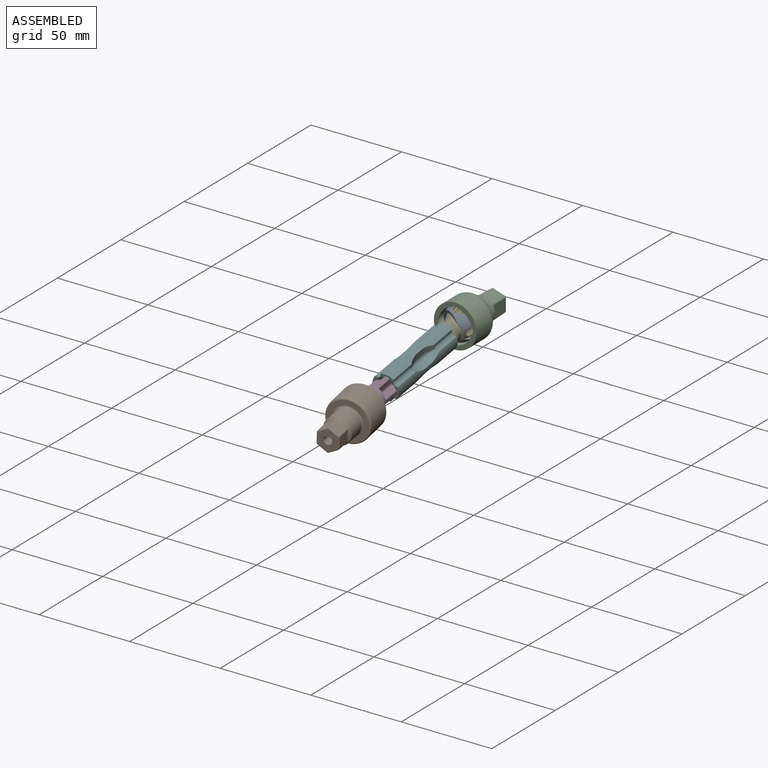
[diagram: assembled view]
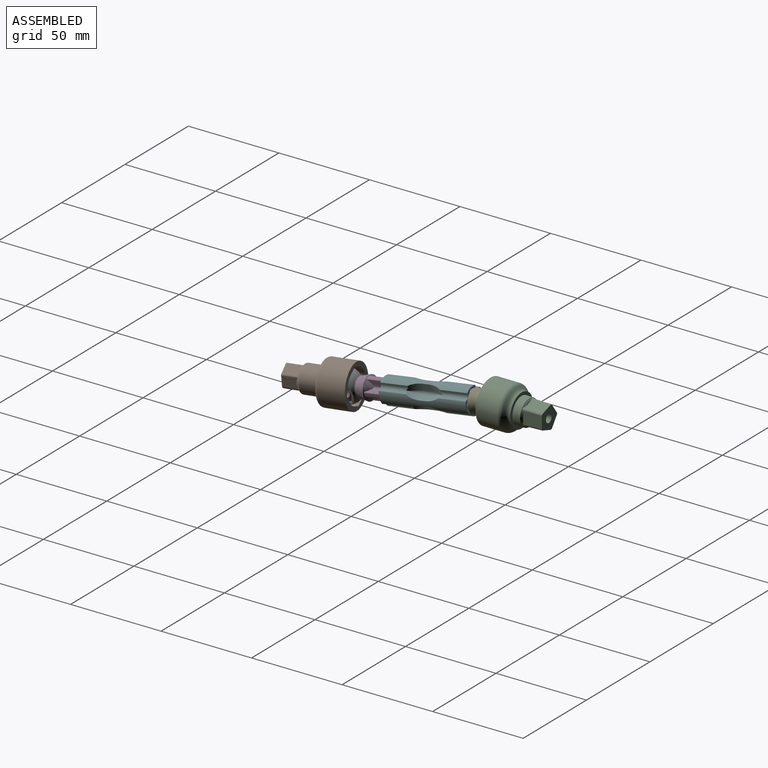
[diagram: assembled view, second angle]
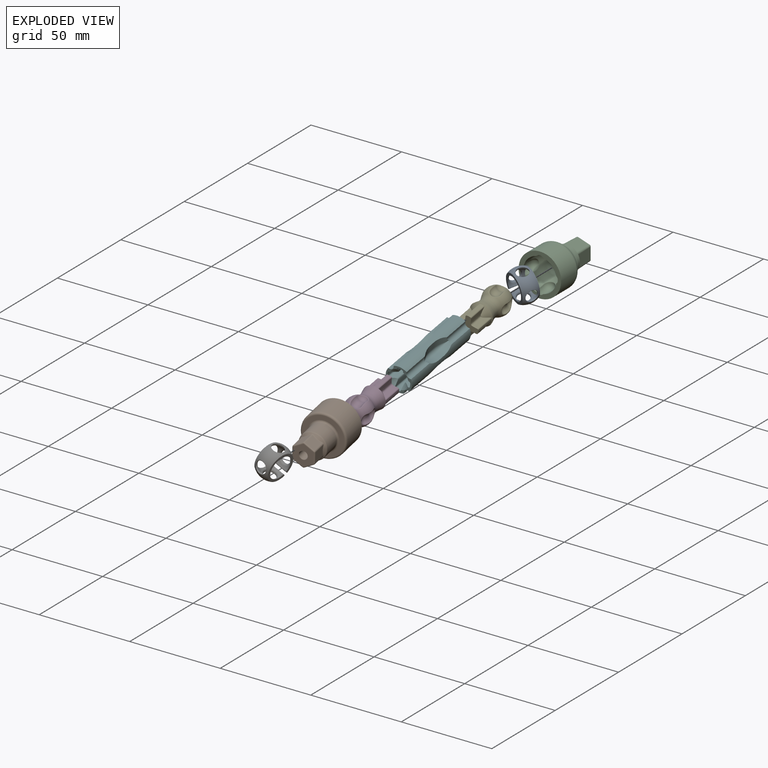
[diagram: exploded view]
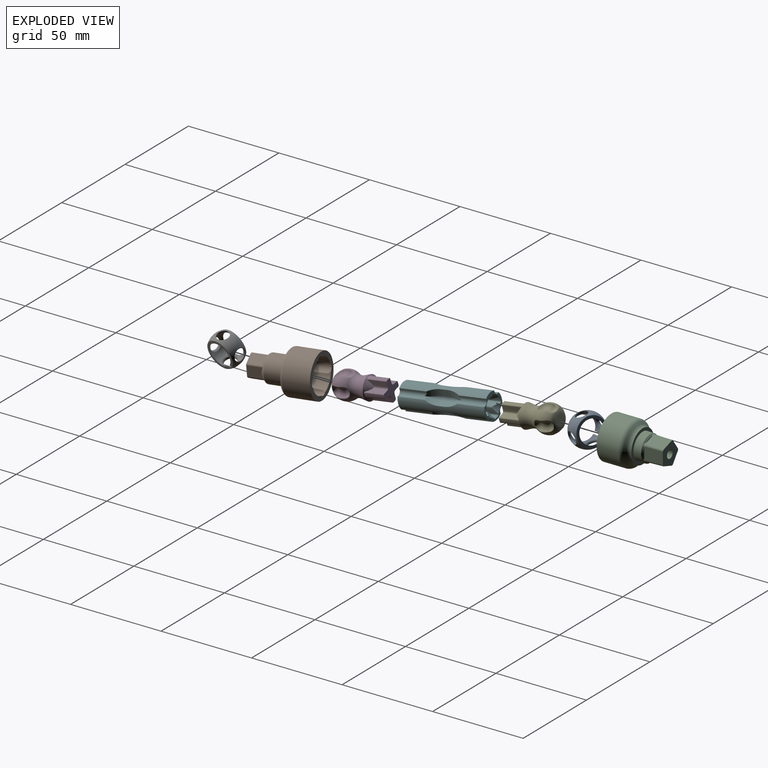
[diagram: exploded view, second angle]
FCSTD DOCUMENT  (FreeCAD 2022.1021R26244 +5249 (Git))
Label: DOGBONE _1_
License: All rights reserved
LicenseURL: http://en.wikipedia.org/wiki/All_rights_reserved
objects: App::FeaturePython×20, Part::FeaturePython×18, App::Link×7, App::Part×1
note: 17 computed .brp shape members not serialized (recipe doc carries the construction recipe); baked Part::Feature solids carry a one-line shape summary decoded from their .brp
EXTERNAL_REF file=DOGBONE _1__parts/C03.fcstd obj=Solid
EXTERNAL_REF file=DOGBONE _1__parts/C01.fcstd obj=Solid
EXTERNAL_REF file=DOGBONE _1__parts/C02.fcstd obj=Solid
EXTERNAL_REF file=DOGBONE _1__parts/C04.fcstd obj=Solid
EXTERNAL_REF file=DOGBONE _1__parts/C05-T.fcstd obj=Solid

FEATURE [App::Link] Link  label="C03"
  AutoLinkLabel = true
  AutoPlacement = true
  LinkPlacement = pos=(-90.0198,-31.6115,-13.564) rot=(0.08311,0.784722,-0.614251;3.61941rad)
  LinkedObject = -> <external DOGBONE _1__parts/C03.fcstd>#Solid
  Placement = pos=(-90.0198,-31.6115,-13.564) rot=(0.08311,0.784722,-0.614251;3.61941rad)
  SyncGroupVisibility = false
  TreeRank = 62
  _LinkVersion = 1
FEATURE [App::Link] Link001  label="C01"
  AutoLinkLabel = true
  AutoPlacement = true
  LinkPlacement = pos=(-89.0627,-112.031,-25.7343) rot=(0.535007,0.65266,-0.536473;2.08169rad)
  LinkedObject = -> <external DOGBONE _1__parts/C01.fcstd>#Solid
  Placement = pos=(-89.0627,-112.031,-25.7343) rot=(0.535007,0.65266,-0.536473;2.08169rad)
  SyncGroupVisibility = false
  TreeRank = 63
  _LinkVersion = 1
FEATURE [App::Link] Link002  label="C02"
  AutoLinkLabel = true
  AutoPlacement = true
  LinkPlacement = pos=(-90.0198,-33.6115,-13.564) rot=(-0.57735,-0.57735,-0.57735;2.0944rad)
  LinkedObject = -> <external DOGBONE _1__parts/C02.fcstd>#Solid
  Placement = pos=(-90.0198,-33.6115,-13.564) rot=(-0.57735,-0.57735,-0.57735;2.0944rad)
  SyncGroupVisibility = false
  TreeRank = 64
  _LinkVersion = 1
FEATURE [App::Link] Link003  label="C04"
  AutoLinkLabel = true
  AutoPlacement = true
  LinkPlacement = pos=(-89.3895,-73.46,-19.8067) rot=(0.174827,0.03262,0.984059;1.61771rad)
  LinkedObject = -> <external DOGBONE _1__parts/C04.fcstd>#Solid
  Placement = pos=(-89.3895,-73.46,-19.8067) rot=(0.174827,0.03262,0.984059;1.61771rad)
  SyncGroupVisibility = false
  TreeRank = 65
  _LinkVersion = 1
FEATURE [App::Link] Link004  label="C005"
  AutoLinkLabel = true
  AutoPlacement = true
  LinkPlacement = pos=(-89.4091,-72.1583,-19.6125) rot=(0.71216,-0.69051,-0.126585;3.09426rad)
  LinkedObject = -> <external DOGBONE _1__parts/C04.fcstd>#Solid
  Placement = pos=(-89.4091,-72.1583,-19.6125) rot=(0.71216,-0.69051,-0.126585;3.09426rad)
  SyncGroupVisibility = false
  TreeRank = 66
  _LinkVersion = 1
FEATURE [App::Link] Link005  label="C05-T"
  AutoLinkLabel = true
  AutoPlacement = true
  LinkPlacement = pos=(-89.4646,-68.4722,-19.0627) rot=(0.686881,-0.546101,0.47955;2.08315rad)
  LinkedObject = -> <external DOGBONE _1__parts/C05-T.fcstd>#Solid
  Placement = pos=(-89.4646,-68.4722,-19.0627) rot=(0.686881,-0.546101,0.47955;2.08315rad)
  SyncGroupVisibility = false
  TreeRank = 67
  _LinkVersion = 1
FEATURE [App::Link] Link006  label="C006"
  AutoLinkLabel = true
  AutoPlacement = true
  LinkPlacement = pos=(-88.7788,-114.007,-25.8552) rot=(0.573172,0.471159,-0.670435;4.4733rad)
  LinkedObject = -> <external DOGBONE _1__parts/C03.fcstd>#Solid
  Placement = pos=(-88.7788,-114.007,-25.8552) rot=(0.573172,0.471159,-0.670435;4.4733rad)
  SyncGroupVisibility = false
  TreeRank = 68
  _LinkVersion = 1
FEATURE [App::Part] Part  label="DOGBONE <1>"
  ClaimAllChildren = false
  ExportMode = 1
  Origin = -> Origin
  TreeRank = 18
  _GroupVersion = 1
FEATURE [Part::FeaturePython] Parts  # WARN: FeaturePython — macro-defined, semantics opaque (R4)
  GroupMode = 0
  TreeRank = 22
  _LinkVersion = 1
FEATURE [Part::FeaturePython] Assembly  label="DOGBONE 1"  # WARN: FeaturePython — macro-defined, semantics opaque (R4)
  AutoRelax = true
  BuildShape = 0
  Freeze = false
  Group = -> [Constraints,Elements,Parts]
  TreeRank = 19
  Verbose = false
  _LinkVersion = 1
  _SolverType = 1
  _Version = 1
FEATURE [App::FeaturePython] Constraints  # WARN: FeaturePython — macro-defined, semantics opaque (R4)
  Group = -> [Constraint001,Constraint002,Constraint003,Constraint004,Constraint005,Constraint006]
  TreeRank = 20
  _LinkVersion = 1
  _Version = 1
FEATURE [App::FeaturePython] Elements  # WARN: FeaturePython — macro-defined, semantics opaque (R4)
  Group = -> [_Element,_Element001,_Element002,_Element003,_Element004,_Element005,_Element006,_Element007,_Element008,_Element009,_Element010,_Element011,_Element012,Element,Element001,Element002]
  TreeRank = 21
  _LinkVersion = 1
FEATURE [Part::FeaturePython] _Element  # link proxy (typed FeaturePython)
  Detach = false
  LinkTransform = true
  LinkedObject = -> Link002 [Face25]
  TreeRank = 25
  _LinkVersion = 1
  _Parent = -> Elements
FEATURE [Part::FeaturePython] _Element001  # link proxy (typed FeaturePython)
  Detach = false
  LinkTransform = true
  LinkedObject = -> Link [Face1]
  TreeRank = 28
  _LinkVersion = 1
  _Parent = -> Elements
FEATURE [Part::FeaturePython] _Element002  # link proxy (typed FeaturePython)
  Detach = false
  LinkTransform = true
  LinkedObject = -> Link002 [Face3]
  TreeRank = 30
  _LinkVersion = 1
  _Parent = -> Elements
FEATURE [App::FeaturePython] Constraint001  label="PointsCoincident"  # WARN: FeaturePython — macro-defined, semantics opaque (R4)
  Disabled = false
  Group = -> [ElementLink001,ElementLink002]
  TreeRank = 31
  _ConstraintType = 1
  _LinkVersion = 1
  _Parent = -> Constraints
FEATURE [App::FeaturePython] ElementLink001  label="_Element001"  # link proxy (typed FeaturePython)
  LinkTransform = true
  LinkedObject = -> _Element001
  TreeRank = 32
  _LinkVersion = 1
  _Parent = -> Constraint001
FEATURE [App::FeaturePython] ElementLink002  label="_Element003"  # link proxy (typed FeaturePython)
  LinkTransform = true
  LinkedObject = -> _Element003
  TreeRank = 33
  _LinkVersion = 1
  _Parent = -> Constraint001
FEATURE [Part::FeaturePython] _Element003  # link proxy (typed FeaturePython)
  Detach = false
  LinkTransform = true
  LinkedObject = -> Link002 [Face1]
  TreeRank = 34
  _LinkVersion = 1
  _Parent = -> Elements
FEATURE [App::FeaturePython] Constraint002  label="PointsCoincident001"  # WARN: FeaturePython — macro-defined, semantics opaque (R4)
  Disabled = false
  Group = -> [ElementLink003,ElementLink004]
  TreeRank = 35
  _ConstraintType = 1
  _LinkVersion = 1
  _Parent = -> Constraints
FEATURE [App::FeaturePython] ElementLink003  label="_Element008"  # link proxy (typed FeaturePython)
  LinkTransform = true
  LinkedObject = -> _Element007
  TreeRank = 36
  _LinkVersion = 1
  _Parent = -> Constraint002
FEATURE [Part::FeaturePython] _Element004  # link proxy (typed FeaturePython)
  Detach = false
  LinkTransform = true
  LinkedObject = -> Link004 [Face67]
  TreeRank = 37
  _LinkVersion = 1
  _Parent = -> Elements
FEATURE [App::FeaturePython] ElementLink004  label="_Element001"  # link proxy (typed FeaturePython)
  LinkTransform = true
  LinkedObject = -> _Element001
  TreeRank = 38
  _LinkVersion = 1
  _Parent = -> Constraint002
FEATURE [App::FeaturePython] Constraint003  label="PointsCoincident002"  # WARN: FeaturePython — macro-defined, semantics opaque (R4)
  Disabled = false
  Group = -> [ElementLink005,ElementLink006]
  TreeRank = 39
  _ConstraintType = 1
  _LinkVersion = 1
  _Parent = -> Constraints
FEATURE [App::FeaturePython] ElementLink005  label="_Element005"  # link proxy (typed FeaturePython)
  LinkTransform = true
  LinkedObject = -> _Element005
  TreeRank = 40
  _LinkVersion = 1
  _Parent = -> Constraint003
FEATURE [Part::FeaturePython] _Element005  # link proxy (typed FeaturePython)
  Detach = false
  LinkTransform = true
  LinkedObject = -> Link006 [Face2]
  TreeRank = 41
  _LinkVersion = 1
  _Parent = -> Elements
FEATURE [App::FeaturePython] ElementLink006  label="_Element006"  # link proxy (typed FeaturePython)
  LinkTransform = true
  LinkedObject = -> _Element006
  TreeRank = 42
  _LinkVersion = 1
  _Parent = -> Constraint003
FEATURE [Part::FeaturePython] _Element006  # link proxy (typed FeaturePython)
  Detach = false
  LinkTransform = true
  LinkedObject = -> Link003 [Face1]
  TreeRank = 43
  _LinkVersion = 1
  _Parent = -> Elements
FEATURE [Part::FeaturePython] _Element007  label="_Element008"  # link proxy (typed FeaturePython)
  Detach = false
  LinkTransform = true
  LinkedObject = -> Link004 [Face1]
  TreeRank = 44
  _LinkVersion = 1
  _Parent = -> Elements
FEATURE [App::FeaturePython] Constraint004  label="AxialAlignment"  # WARN: FeaturePython — macro-defined, semantics opaque (R4)
  Angle = 0
  AnglePitch = 0
  AngleRoll = 0
  Disabled = false
  Group = -> [ElementLink007,ElementLink008]
  LockAngle = false
  Multiply = false
  TreeRank = 45
  _ConstraintType = 36
  _LinkVersion = 1
  _Parent = -> Constraints
FEATURE [App::FeaturePython] ElementLink007  label="_Element008"  # link proxy (typed FeaturePython)
  LinkTransform = true
  LinkedObject = -> _Element008
  TreeRank = 46
  _LinkVersion = 1
  _Parent = -> Constraint004
FEATURE [Part::FeaturePython] _Element008  # link proxy (typed FeaturePython)
  Detach = false
  LinkTransform = true
  LinkedObject = -> Link004 [Face9]
  TreeRank = 47
  _LinkVersion = 1
  _Parent = -> Elements
FEATURE [App::FeaturePython] ElementLink008  label="_Element009"  # link proxy (typed FeaturePython)
  LinkTransform = true
  LinkedObject = -> _Element009
  TreeRank = 48
  _LinkVersion = 1
  _Parent = -> Constraint004
FEATURE [Part::FeaturePython] _Element009  # link proxy (typed FeaturePython)
  Detach = false
  LinkTransform = true
  LinkedObject = -> Link005 [Face96]
  TreeRank = 49
  _LinkVersion = 1
  _Parent = -> Elements
FEATURE [App::FeaturePython] Constraint005  label="AxialAlignment001"  # WARN: FeaturePython — macro-defined, semantics opaque (R4)
  Angle = 0
  AnglePitch = 0
  AngleRoll = 0
  Disabled = false
  Group = -> [ElementLink009,ElementLink010]
  LockAngle = false
  Multiply = false
  TreeRank = 50
  _ConstraintType = 36
  _LinkVersion = 1
  _Parent = -> Constraints
FEATURE [App::FeaturePython] ElementLink009  label="_Element010"  # link proxy (typed FeaturePython)
  LinkTransform = true
  LinkedObject = -> _Element010
  TreeRank = 51
  _LinkVersion = 1
  _Parent = -> Constraint005
FEATURE [Part::FeaturePython] _Element010  # link proxy (typed FeaturePython)
  Detach = false
  LinkTransform = true
  LinkedObject = -> Link005 [Face30]
  TreeRank = 52
  _LinkVersion = 1
  _Parent = -> Elements
FEATURE [App::FeaturePython] ElementLink010  label="_Element011"  # link proxy (typed FeaturePython)
  LinkTransform = true
  LinkedObject = -> _Element011
  TreeRank = 53
  _LinkVersion = 1
  _Parent = -> Constraint005
FEATURE [Part::FeaturePython] _Element011  # link proxy (typed FeaturePython)
  Detach = false
  LinkTransform = true
  LinkedObject = -> Link003 [Face9]
  TreeRank = 54
  _LinkVersion = 1
  _Parent = -> Elements
FEATURE [App::FeaturePython] Constraint006  label="PointsCoincident003"  # WARN: FeaturePython — macro-defined, semantics opaque (R4)
  Disabled = false
  Group = -> [ElementLink011,ElementLink012]
  TreeRank = 55
  _ConstraintType = 1
  _LinkVersion = 1
  _Parent = -> Constraints
FEATURE [App::FeaturePython] ElementLink011  label="_Element005"  # link proxy (typed FeaturePython)
  LinkTransform = true
  LinkedObject = -> _Element005
  TreeRank = 56
  _LinkVersion = 1
  _Parent = -> Constraint006
FEATURE [App::FeaturePython] ElementLink012  label="_Element012"  # link proxy (typed FeaturePython)
  LinkTransform = true
  LinkedObject = -> _Element012
  TreeRank = 57
  _LinkVersion = 1
  _Parent = -> Constraint006
FEATURE [Part::FeaturePython] _Element012  # link proxy (typed FeaturePython)
  Detach = false
  LinkTransform = true
  LinkedObject = -> Link001 [Face1]
  TreeRank = 58
  _LinkVersion = 1
  _Parent = -> Elements
FEATURE [Part::FeaturePython] Element  # link proxy (typed FeaturePython)
  Detach = false
  LinkTransform = true
  LinkedObject = -> Link002 [Edge54]
  TreeRank = 59
  _LinkVersion = 1
  _Parent = -> Elements
FEATURE [Part::FeaturePython] Element001  # link proxy (typed FeaturePython)
  Detach = false
  LinkTransform = true
  LinkedObject = -> Link001 [Face2]
  TreeRank = 60
  _LinkVersion = 1
  _Parent = -> Elements
FEATURE [Part::FeaturePython] Element002  # link proxy (typed FeaturePython)
  Detach = false
  LinkTransform = true
  LinkedObject = -> Link002 [Face14]
  TreeRank = 61
  _LinkVersion = 1
  _Parent = -> Elements
